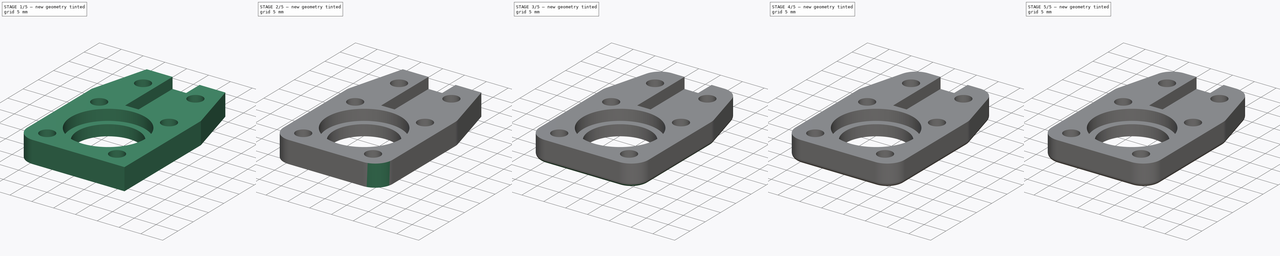
[diagram: build sequence overview — one tinted view per stage of 5, left to right]
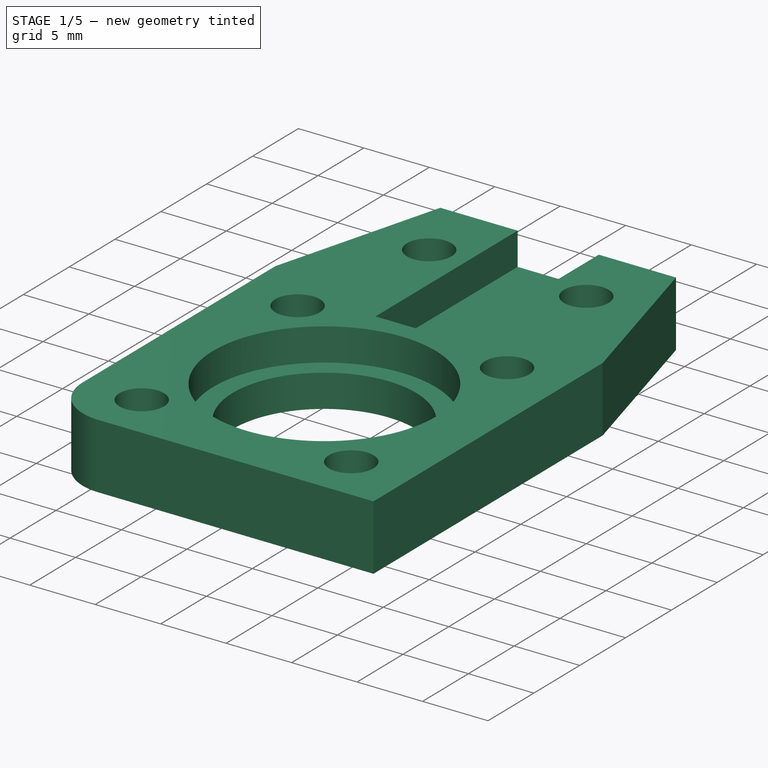
[diagram: stage 1 of 5 — iso view after this stage's code; geometry added in this stage tinted green]
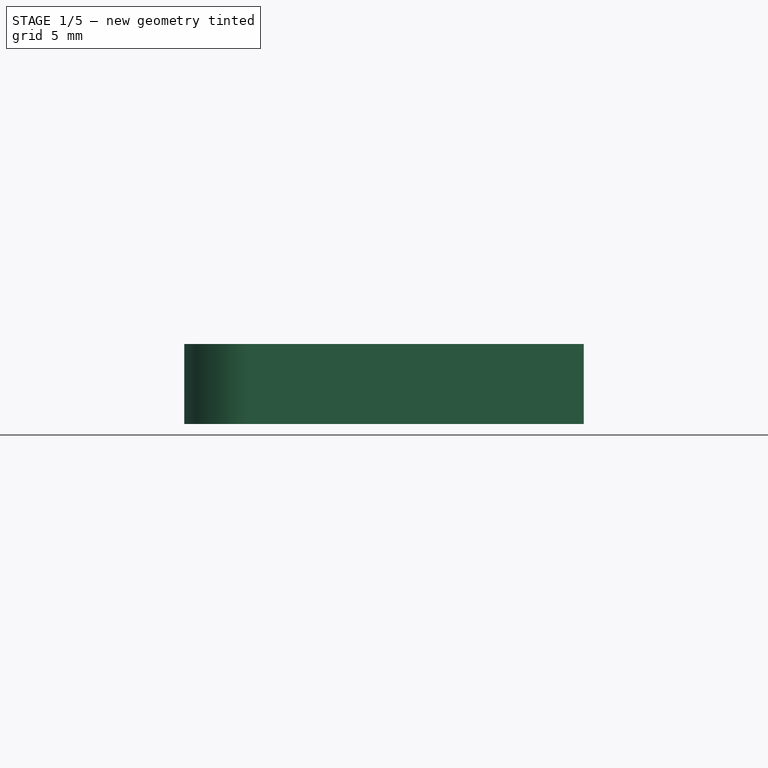
[diagram: stage 1 of 5 — front view after this stage's code; geometry added in this stage tinted green]
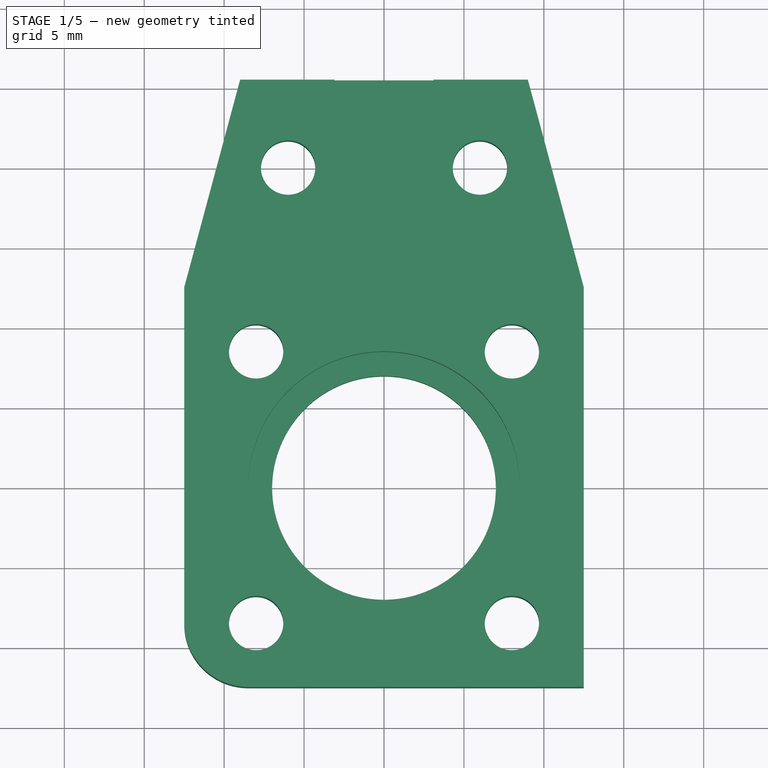
[diagram: stage 1 of 5 — top view after this stage's code; geometry added in this stage tinted green]
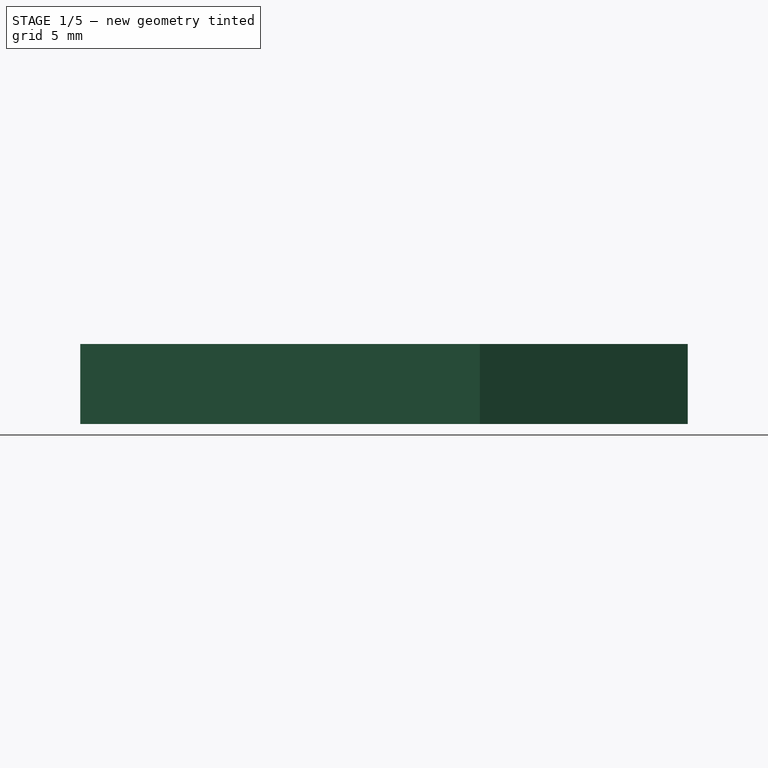
[diagram: stage 1 of 5 — right view after this stage's code; geometry added in this stage tinted green]
FCSTD DOCUMENT  (FreeCAD 0.16R6706 (Git))
Label: PushRodTail_Short
License: All rights reserved
LicenseURL: http://en.wikipedia.org/wiki/All_rights_reserved
objects: PartDesign::Fillet×7, PartDesign::Chamfer×6, Sketcher::SketchObject×2, PartDesign::Pad×1, PartDesign::Pocket×1
note: 19 computed .brp shape members not serialized (recipe doc carries the construction recipe); baked Part::Feature solids carry a one-line shape summary decoded from their .brp

FEATURE [Sketcher::SketchObject] Sketch
  sketch-geometry (27):
    g0: Circle CenterX=0 CenterY=0 CenterZ=0 NormalX=0 NormalY=0 NormalZ=1 Radius=7
    g1: Circle [constr] CenterX=0 CenterY=0 CenterZ=0 NormalX=0 NormalY=0 NormalZ=1 Radius=8.5
    g2: LineSegment StartX=-12.5 StartY=-12.5 StartZ=0 EndX=12.5 EndY=-12.5 EndZ=0
    g3: LineSegment StartX=12.5 StartY=-12.5 StartZ=0 EndX=12.5 EndY=12.5 EndZ=0
    g4: LineSegment StartX=12.5 StartY=12.5 StartZ=0 EndX=9 EndY=25.5 EndZ=0
    g5: LineSegment StartX=9 StartY=25.5 StartZ=0 EndX=-9 EndY=25.5 EndZ=0
    g6: LineSegment StartX=-9 StartY=25.5 StartZ=0 EndX=-12.5 EndY=12.5 EndZ=0
    g7: LineSegment StartX=-12.5 StartY=12.5 StartZ=0 EndX=-12.5 EndY=-12.5 EndZ=0
    g8: LineSegment [constr] StartX=-12.5 StartY=12.5 StartZ=0 EndX=12.5 EndY=12.5 EndZ=0
    g9: GeomPoint [constr] X=0 Y=-8.5 Z=0
    g10: LineSegment [constr] StartX=-3.05 StartY=27 StartZ=0 EndX=3.05 EndY=27 EndZ=0
    g11: LineSegment [constr] StartX=3.05 StartY=27 StartZ=0 EndX=3.05 EndY=9 EndZ=0
    g12: LineSegment [constr] StartX=3.05 StartY=9 StartZ=0 EndX=-3.05 EndY=9 EndZ=0
    g13: LineSegment [constr] StartX=-3.05 StartY=9 StartZ=0 EndX=-3.05 EndY=27 EndZ=0
    g14: Circle CenterX=-8 CenterY=8.5 CenterZ=0 NormalX=0 NormalY=0 NormalZ=1 Radius=1.7
    g15: Circle CenterX=8 CenterY=8.5 CenterZ=0 NormalX=0 NormalY=0 NormalZ=1 Radius=1.7
    g16: LineSegment [constr] StartX=-12.5 StartY=8.5 StartZ=0 EndX=12.5 EndY=8.5 EndZ=0
    g17: LineSegment [constr] StartX=-12.5 StartY=-8.5 StartZ=0 EndX=12.5 EndY=-8.5 EndZ=0
    g18: Circle CenterX=-8 CenterY=-8.5 CenterZ=0 NormalX=0 NormalY=0 NormalZ=1 Radius=1.7
    g19: Circle CenterX=8 CenterY=-8.5 CenterZ=0 NormalX=0 NormalY=0 NormalZ=1 Radius=1.7
    g20: Circle [constr] CenterX=0 CenterY=0 CenterZ=0 NormalX=0 NormalY=0 NormalZ=1 Radius=17
    g21: Circle CenterX=-6 CenterY=20 CenterZ=0 NormalX=0 NormalY=0 NormalZ=1 Radius=1.7
    g22: Circle CenterX=6 CenterY=20 CenterZ=0 NormalX=0 NormalY=0 NormalZ=1 Radius=1.7
    g23: LineSegment [constr] StartX=-6 StartY=20 StartZ=0 EndX=6 EndY=20 EndZ=0
    g24: Circle [constr] CenterX=-6 CenterY=20 CenterZ=0 NormalX=0 NormalY=0 NormalZ=1 Radius=2.5
    g25: GeomPoint [constr] X=0 Y=-12.5 Z=0
    g26: GeomPoint [constr] X=0 Y=25.5 Z=0
  constraints (76):
    c: Coincident(g0,g-1)
    c: Radius(g0) = 7
    c: Coincident(g1,g-1)
    c: Radius(g1) = 8.5
    c: Horizontal(g2)
    c: Coincident(g2,g3)
    c: Vertical(g3)
    c: Coincident(g3,g4)
    c: Coincident(g4,g5)
    c: Horizontal(g5)
    c: Coincident(g5,g6)
    c: Coincident(g6,g7)
    c: Coincident(g7,g2)
    c: Vertical(g7)
    c: Coincident(g8,g6)
    c: Coincident(g8,g3)
    c: Horizontal(g8)
    c: Symmetric(g4,g5,g-2)
    c: Symmetric(g2,g6,g-1)
    c: Equal(g2,g7)
    c: PointOnObject(g9,g1)
    c: PointOnObject(g9,g-2)
    c: DistanceY(g2,g9) = 4
    c: DistanceX(g5,g4) = 18
    c: DistanceY(g6,g5) = 13
    c: Coincident(g10,g11)
    c: Coincident(g11,g12)
    c: Coincident(g12,g13)
    c: Coincident(g13,g10)
    c: Horizontal(g10)
    c: Horizontal(g12)
    c: Vertical(g11)
    c: Vertical(g13)
    c: Symmetric(g10,g10,g-2)
    c: DistanceX(g10,g10) = 6.1
    c: DistanceY(g-1,g12) = 9
    c: PointOnObject(g16,g7)
    c: Horizontal(g16)
    c: PointOnObject(g16,g3)
    c: PointOnObject(g14,g16)
    c: PointOnObject(g15,g16)
    c: Symmetric(g14,g15,g-2)
    c: DistanceX(g14,g15) = 16
    c: Radius(g14) = 1.7
    c: Equal(g14,g15)
    c: PointOnObject(g17,g7)
    c: PointOnObject(g17,g3)
    c: Horizontal(g17)
    c: PointOnObject(g18,g17)
    c: PointOnObject(g19,g17)
    c: Symmetric(g19,g18,g-2)
    c: Equal(g18,g19)
    c: Equal(g19,g14)
    c: DistanceX(g18,g19) = 16
    c: Tangent(g1,g17)
    c: Tangent(g1,g16)
    c: DistanceY(g11,g10) = 18
    c: Distance(g-1,g2) = 17.6777
    c: Radius(g20) = 17
    c: Coincident(g20,g-1)
    c: Coincident(g23,g21)
    c: Coincident(g23,g22)
    c: Horizontal(g23)
    c: Symmetric(g22,g21,g-2)
    c: DistanceY(g-1,g22) = 20
    c: Equal(g15,g22)
    c: Equal(g21,g22)
    c: DistanceX(g21,g22) = 12
    c: Coincident(g24,g21)
    c: Radius(g24) = 2.5
    c: DistanceY(g17,g16) = 17
    c: Radius(g19) = 1.7
    c: PointOnObject(g25,g2)
    c: PointOnObject(g25,g-2)
    c: PointOnObject(g26,g-2)
    c: PointOnObject(g26,g5)
FEATURE [PartDesign::Pad] Pad
  Length = 5
  Length2 = 100
  Sketch = -> Sketch
  Type = 0
FEATURE [Sketcher::SketchObject] Sketch001
  Placement = pos=(0,0,5) rot=(0,0,1;0rad)
  Support = -> Pad [Face15]
  sketch-geometry (5):
    g0: Circle CenterX=0 CenterY=0 CenterZ=0 NormalX=0 NormalY=0 NormalZ=1 Radius=8.5
    g1: LineSegment StartX=-3.1 StartY=30 StartZ=0 EndX=3.1 EndY=30 EndZ=0
    g2: LineSegment StartX=3.1 StartY=30 StartZ=0 EndX=3.1 EndY=10 EndZ=0
    g3: LineSegment StartX=3.1 StartY=10 StartZ=0 EndX=-3.1 EndY=10 EndZ=0
    g4: LineSegment StartX=-3.1 StartY=10 StartZ=0 EndX=-3.1 EndY=30 EndZ=0
  constraints (14):
    c: Coincident(g0,g-1)
    c: Radius(g0) = 8.5
    c: Coincident(g1,g2)
    c: Coincident(g2,g3)
    c: Coincident(g3,g4)
    c: Coincident(g4,g1)
    c: Horizontal(g1)
    c: Horizontal(g3)
    c: Vertical(g2)
    c: Vertical(g4)
    c: Symmetric(g3,g2,g-2)
    c: DistanceX(g1,g1) = 6.2
    c: DistanceY(g2,g1) = 20
    c: DistanceY(g-1,g3) = 10
FEATURE [PartDesign::Pocket] Pocket
  Length = 2.5
  Sketch = -> Sketch001
  Type = 0
FEATURE [PartDesign::Fillet] Fillet
  Base = -> Pocket [Edge1]
  Radius = 4
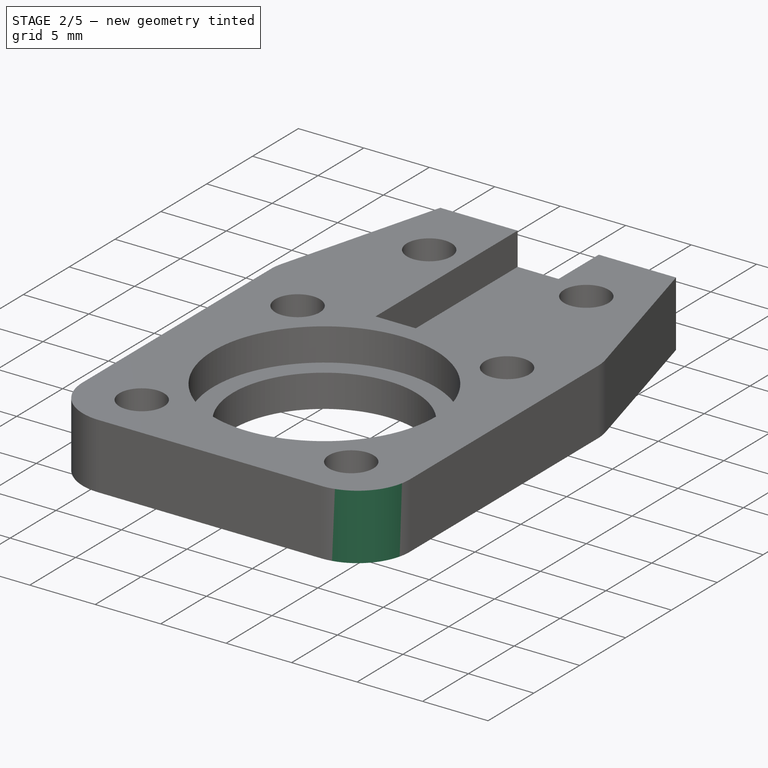
[diagram: stage 2 of 5 — iso view after this stage's code; geometry added in this stage tinted green]
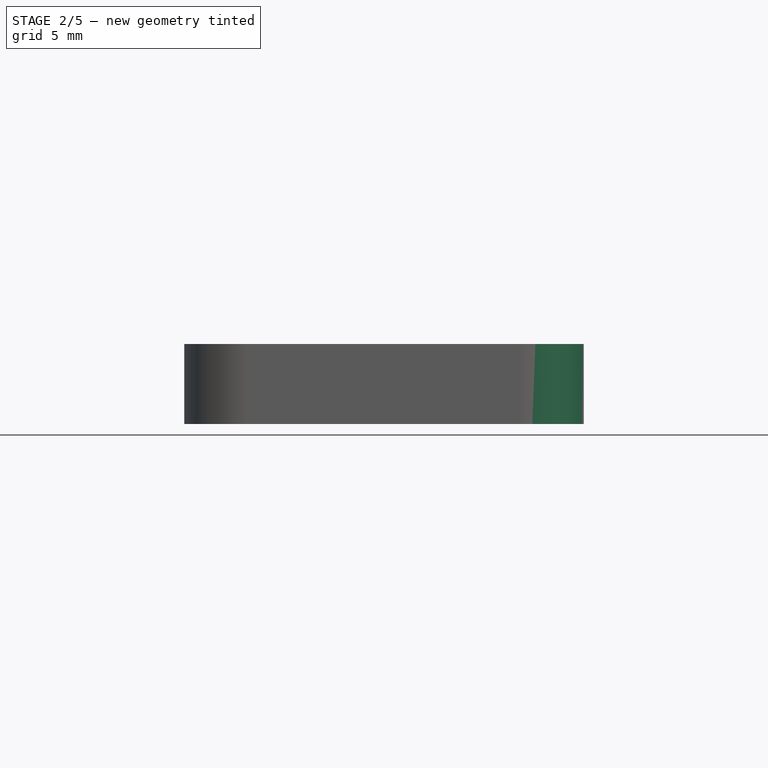
[diagram: stage 2 of 5 — front view after this stage's code; geometry added in this stage tinted green]
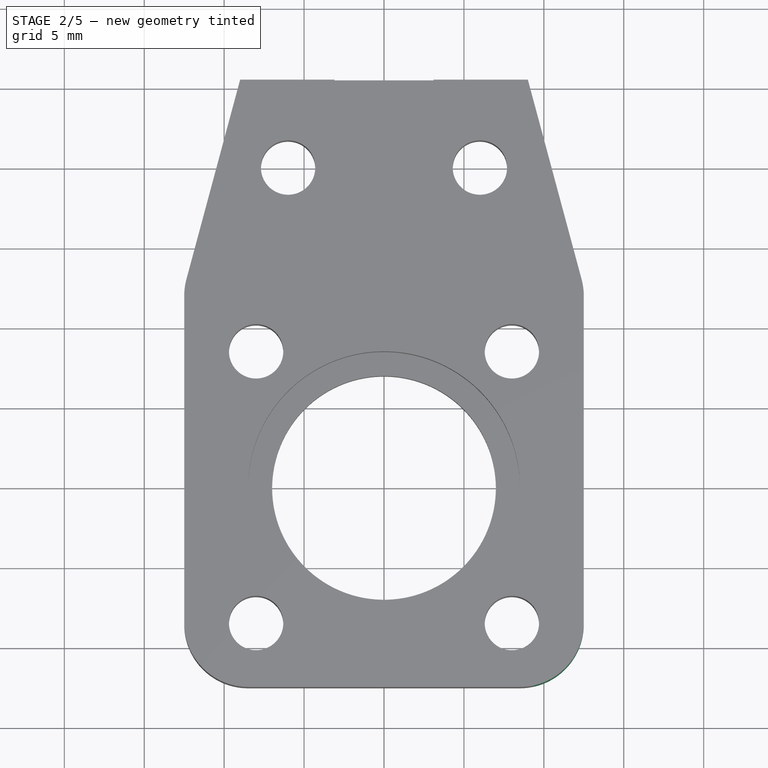
[diagram: stage 2 of 5 — top view after this stage's code; geometry added in this stage tinted green]
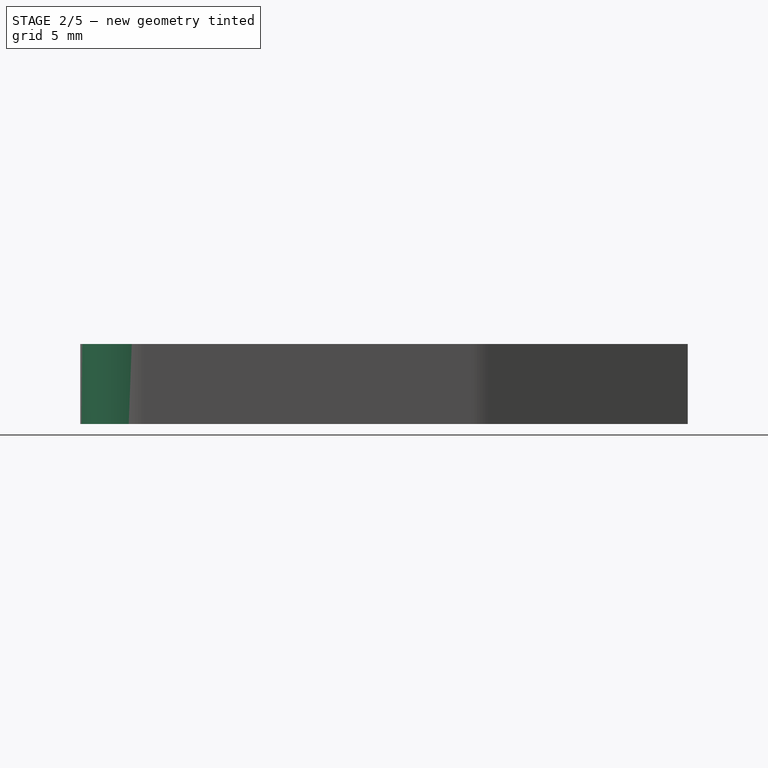
[diagram: stage 2 of 5 — right view after this stage's code; geometry added in this stage tinted green]
FEATURE [PartDesign::Fillet] Fillet001
  Base = -> Fillet [Edge3]
  Radius = 4
FEATURE [PartDesign::Fillet] Fillet002
  Base = -> Fillet001 [Edge40]
  Radius = 4
FEATURE [PartDesign::Fillet] Fillet003
  Base = -> Fillet002 [Edge36]
  Radius = 4
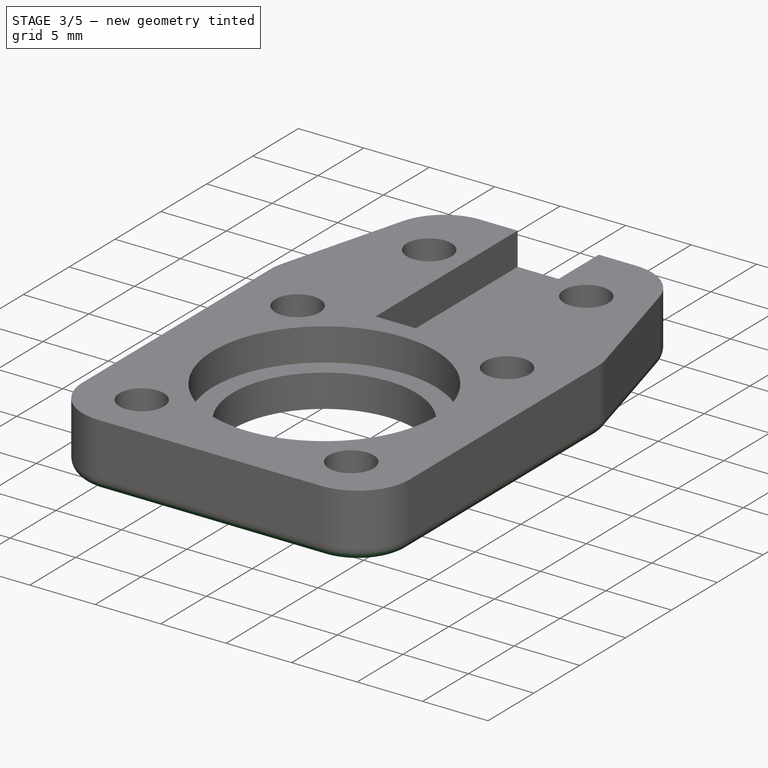
[diagram: stage 3 of 5 — iso view after this stage's code; geometry added in this stage tinted green]
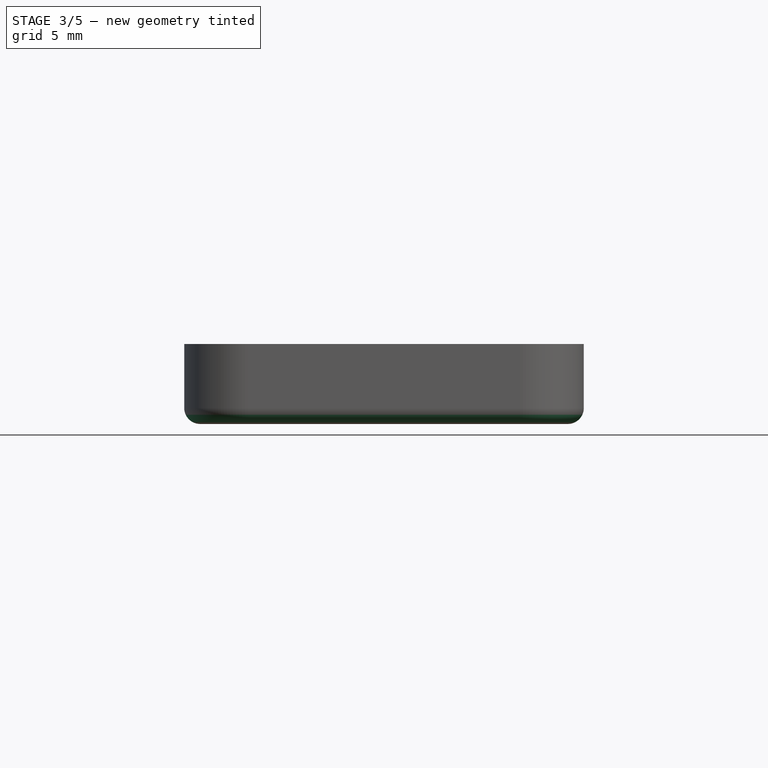
[diagram: stage 3 of 5 — front view after this stage's code; geometry added in this stage tinted green]
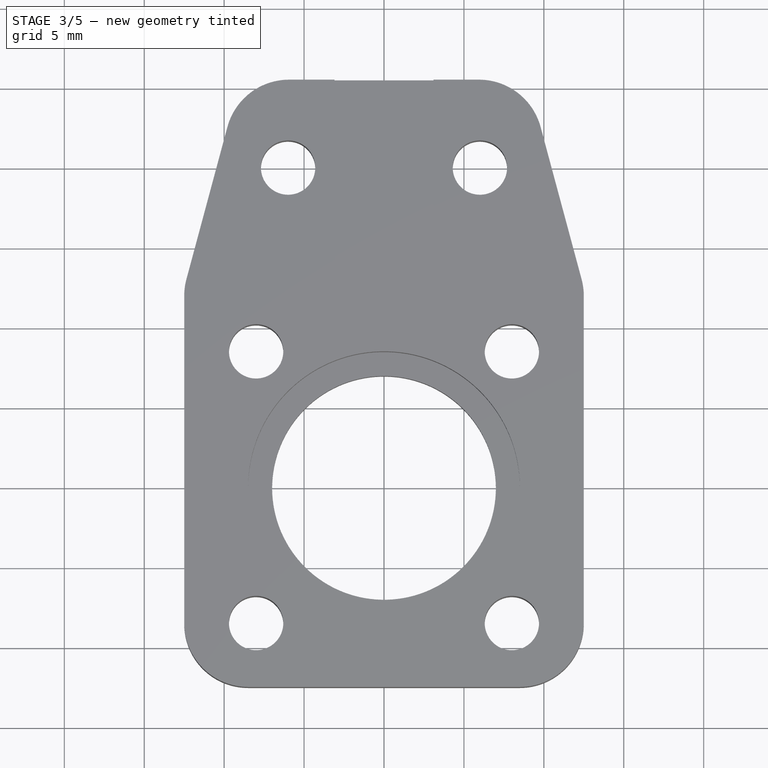
[diagram: stage 3 of 5 — top view after this stage's code; geometry added in this stage tinted green]
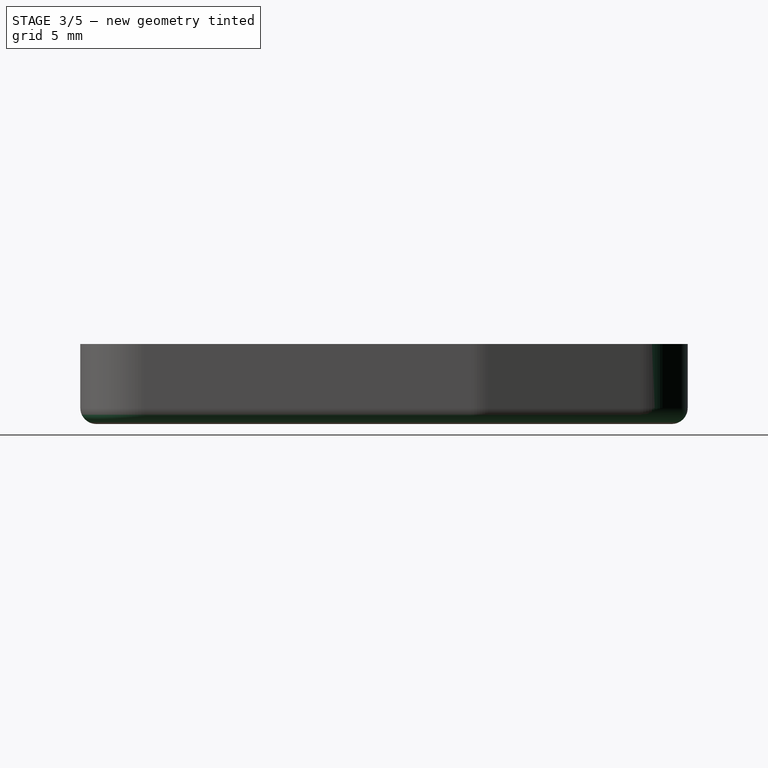
[diagram: stage 3 of 5 — right view after this stage's code; geometry added in this stage tinted green]
FEATURE [PartDesign::Fillet] Fillet004
  Base = -> Fillet003 [Edge19]
  Radius = 4
FEATURE [PartDesign::Fillet] Fillet005
  Base = -> Fillet004 [Edge26]
  Radius = 4
FEATURE [PartDesign::Fillet] Fillet006
  Base = -> Fillet005 [Edge1]
  Radius = 1
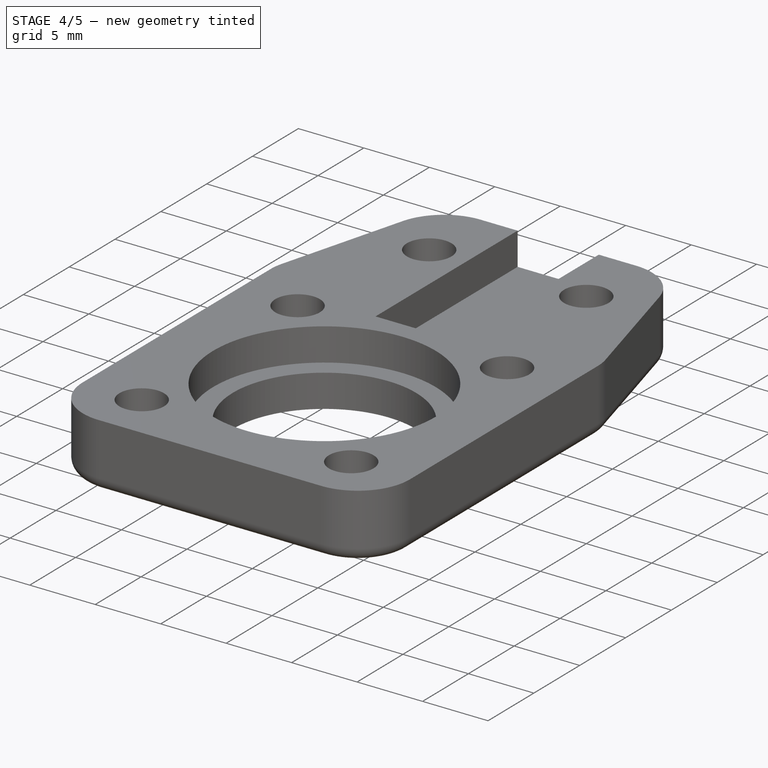
[diagram: stage 4 of 5 — iso view after this stage's code; geometry added in this stage tinted green]
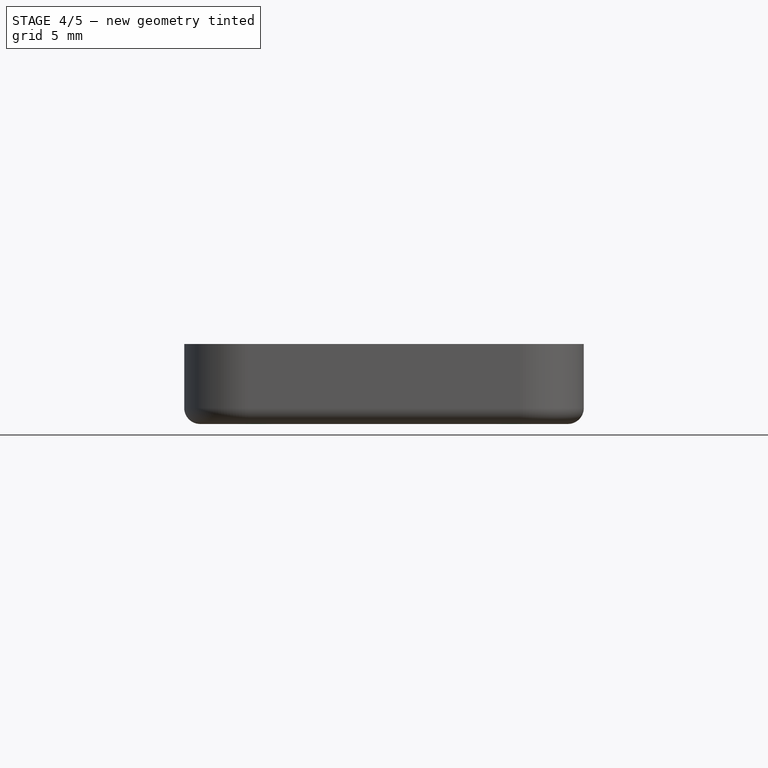
[diagram: stage 4 of 5 — front view after this stage's code; geometry added in this stage tinted green]
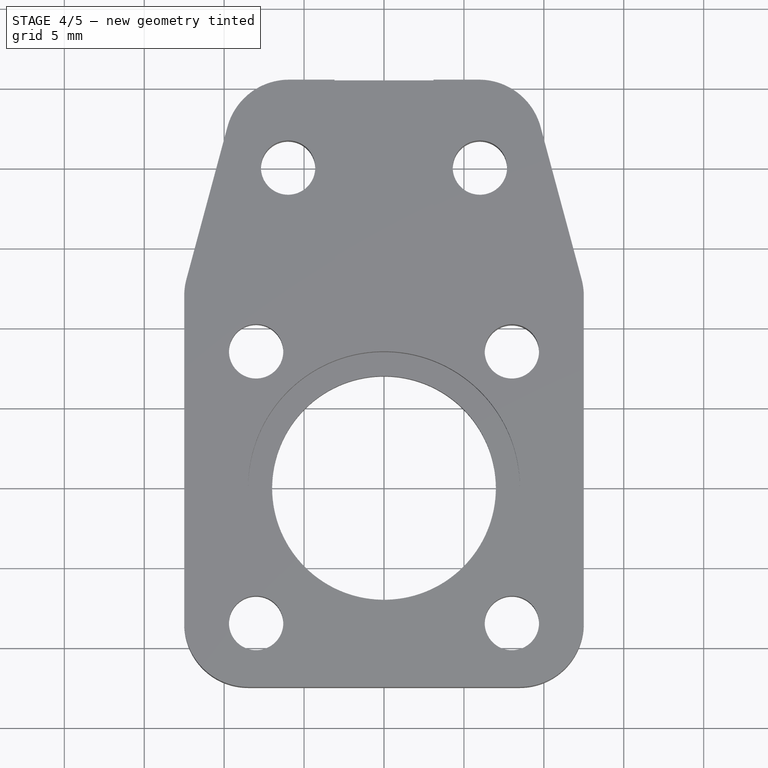
[diagram: stage 4 of 5 — top view after this stage's code; geometry added in this stage tinted green]
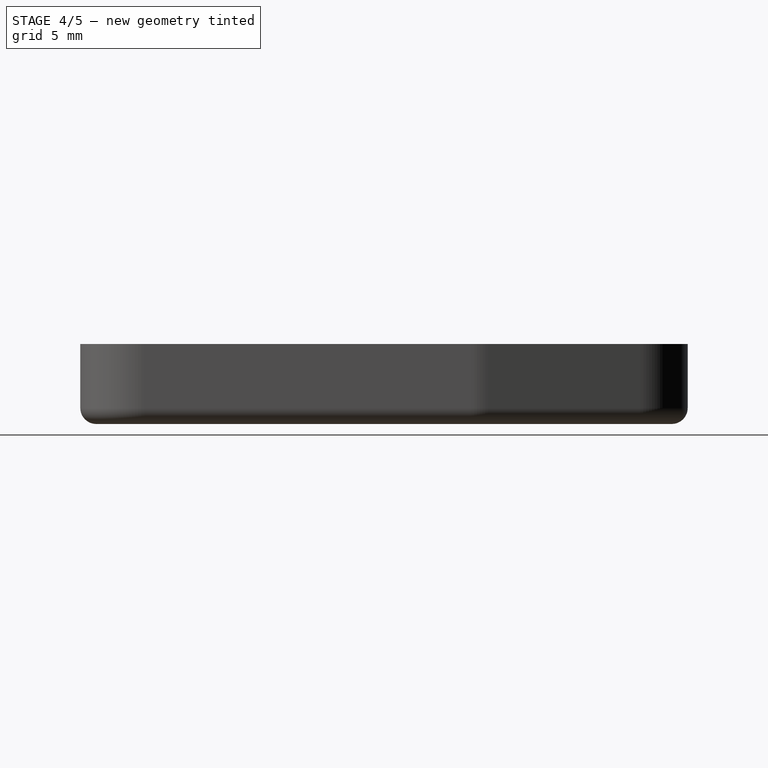
[diagram: stage 4 of 5 — right view after this stage's code; geometry added in this stage tinted green]
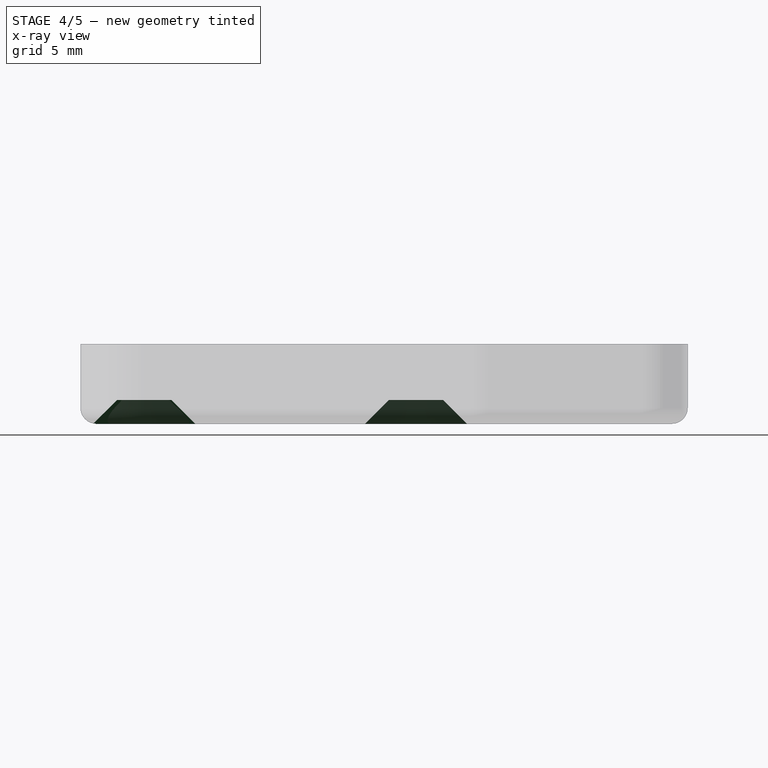
[diagram: stage 4 of 5 — x-ray composite at the right view; earlier geometry ghosted, this stage's added geometry solid]
FEATURE [PartDesign::Chamfer] Chamfer
  Base = -> Fillet006 [Edge15]
  Size = 1.5
FEATURE [PartDesign::Chamfer] Chamfer001
  Base = -> Chamfer [Edge18]
  Size = 1.5
FEATURE [PartDesign::Chamfer] Chamfer002
  Base = -> Chamfer001 [Edge17]
  Size = 1.5
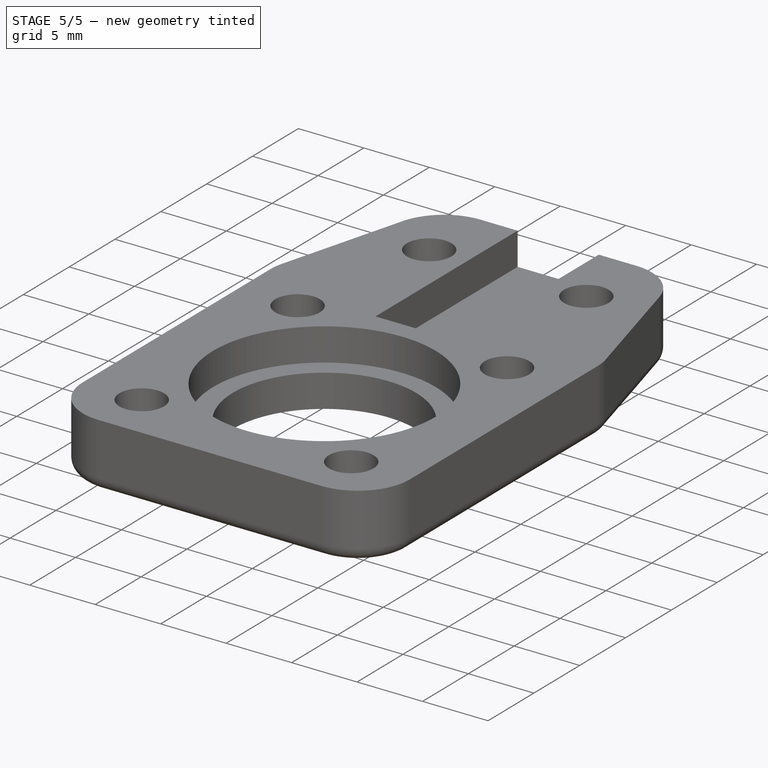
[diagram: stage 5 of 5 — iso view after this stage's code; geometry added in this stage tinted green]
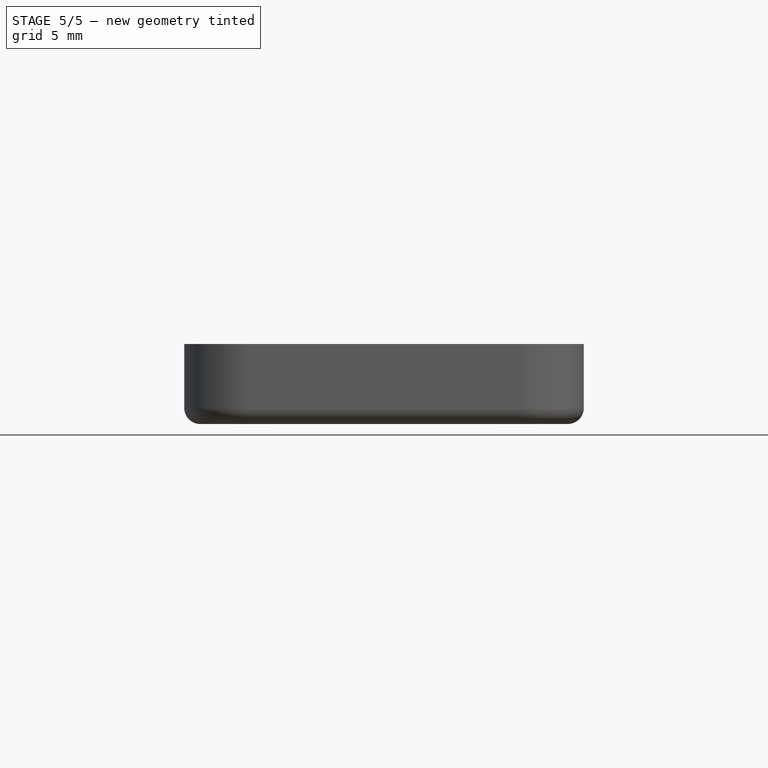
[diagram: stage 5 of 5 — front view after this stage's code; geometry added in this stage tinted green]
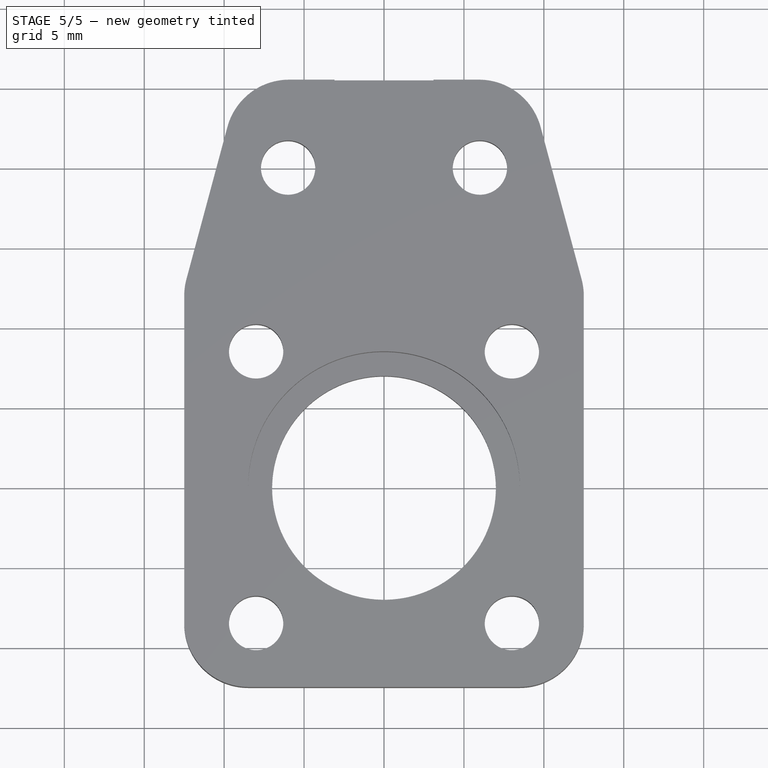
[diagram: stage 5 of 5 — top view after this stage's code; geometry added in this stage tinted green]
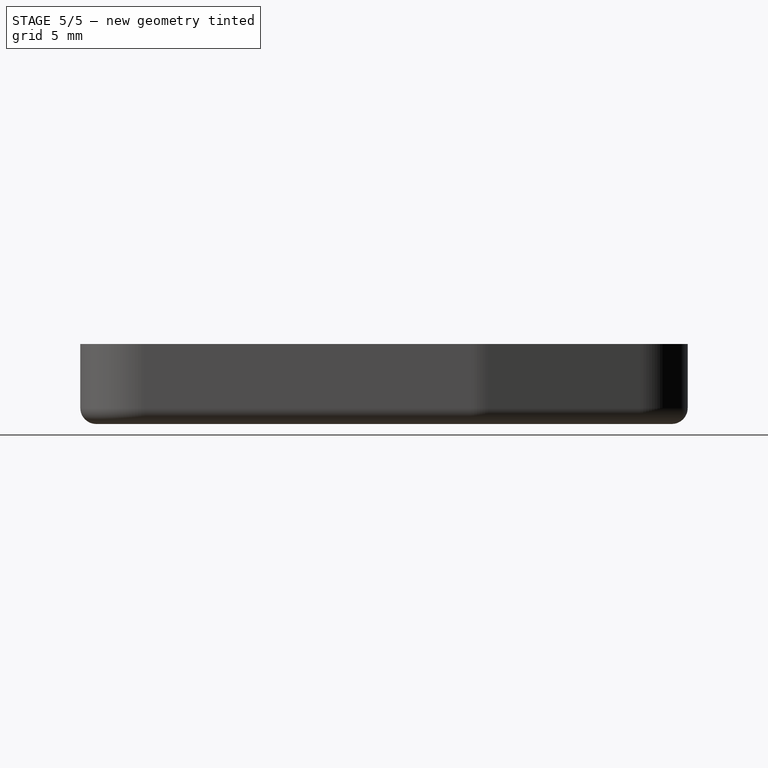
[diagram: stage 5 of 5 — right view after this stage's code; geometry added in this stage tinted green]
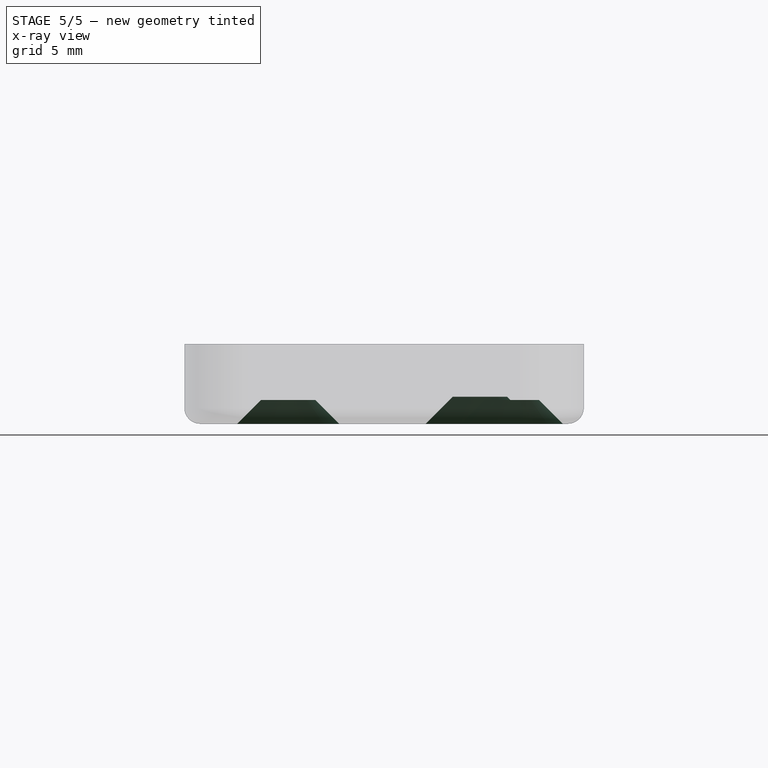
[diagram: stage 5 of 5 — x-ray composite at the front view; earlier geometry ghosted, this stage's added geometry solid]
FEATURE [PartDesign::Chamfer] Chamfer003
  Base = -> Chamfer002 [Edge19]
  Size = 1.5
FEATURE [PartDesign::Chamfer] Chamfer004
  Base = -> Chamfer003 [Edge21]
  Size = 1.5
FEATURE [PartDesign::Chamfer] Chamfer005
  Base = -> Chamfer004 [Edge21]
  Size = 1.7
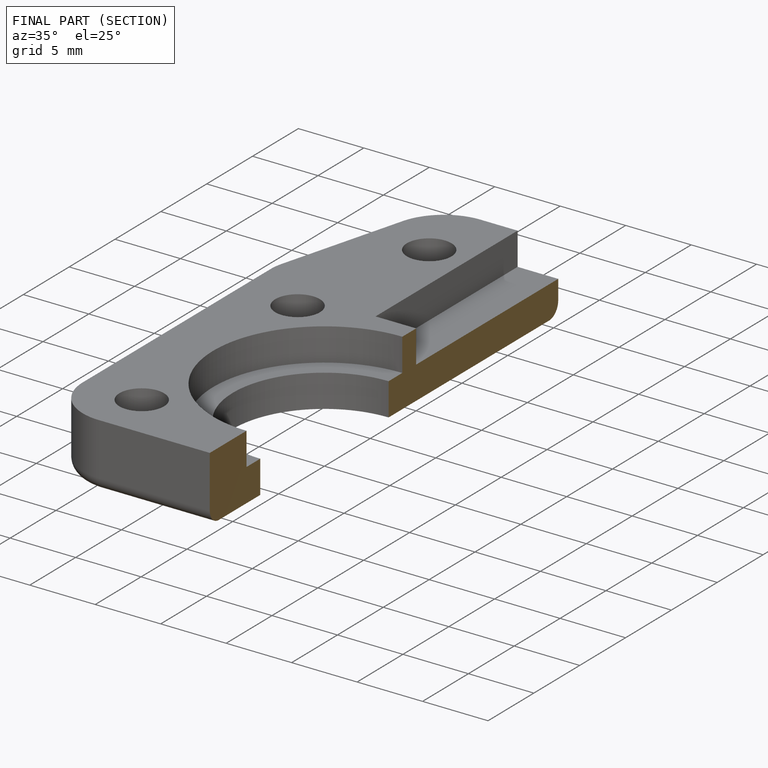
[diagram: finished part — half-section view (interior)]
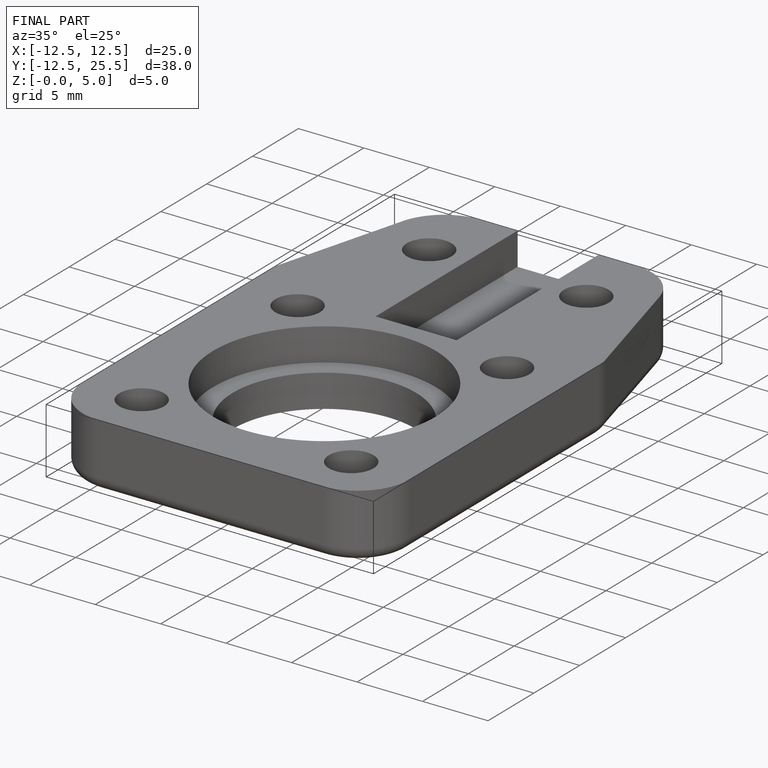
[diagram: finished part — iso view with bounding-box wireframe]
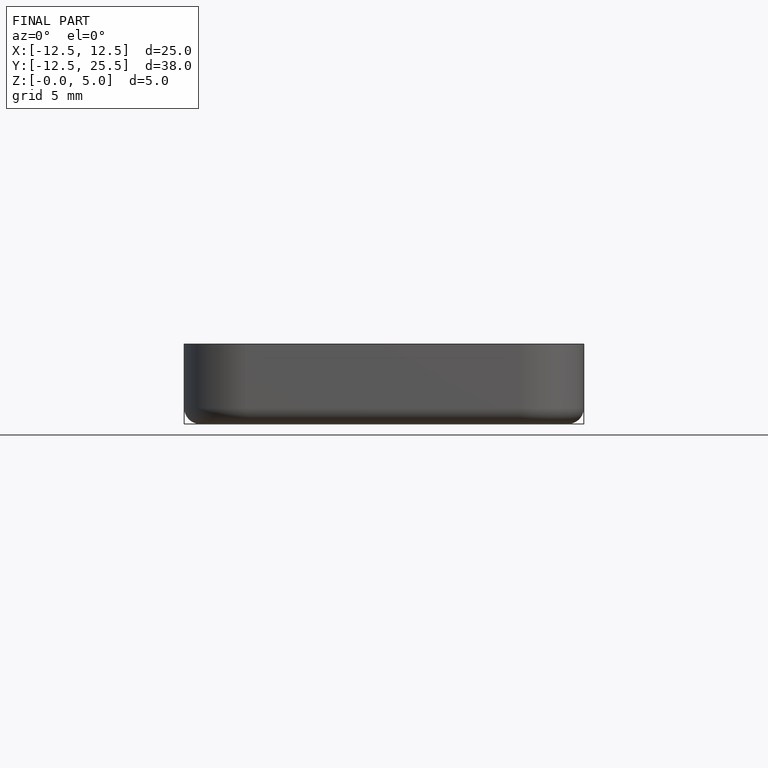
[diagram: finished part — front view with bounding-box wireframe]
